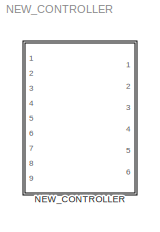
MODEL NEW_CONTROLLER
KIND model
CONFIG AbsTol = auto
CONFIG FixedStep = auto
CONFIG MaxStep = auto
CONFIG MinStep = auto
CONFIG RelTol = 1e-3
CONFIG Solver = ode45
CONFIG SolverMode = Auto
CONFIG StartTime = 0.0
CONFIG StopTime = 10.0
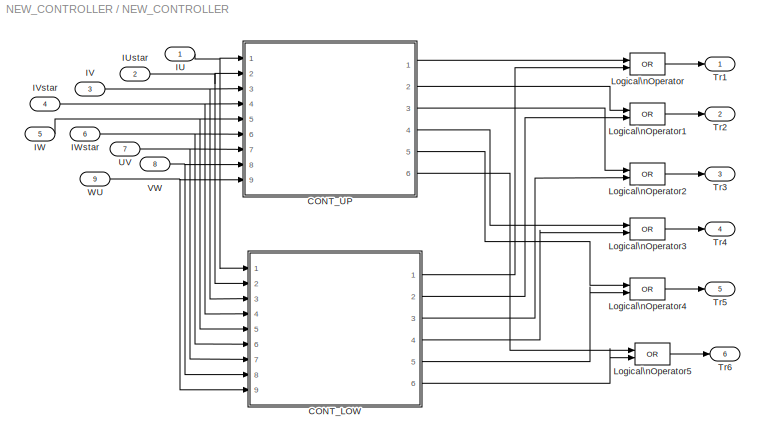
BLOCK [SubSystem] NEW_CONTROLLER
  Ports = [9, 6]
  TreatAsAtomicUnit = off
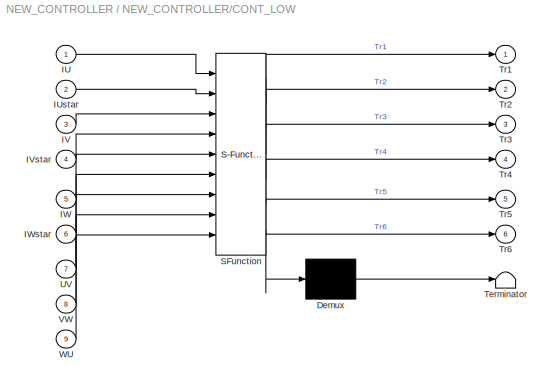
BLOCK [SubSystem] NEW_CONTROLLER/CONT_LOW
  MaskDescription = Stateflow diagram
  MaskDisplay = plot(sf('Private','sfblk','xIcon'),sf('Private','sfblk','yIcon'));text(0.5,0,sf('Private', 'sfblk', 'tIcon'),'HorizontalAl','Center','VerticalAl','Bottom');
  MaskIconFrame = off
  MaskIconOpaque = off
  MaskIconRotate = none
  MaskIconUnits = autoscale
  MaskSelfModifiable = on
  MaskType = Stateflow
  Ports = [9, 6]
  TreatAsAtomicUnit = on
BLOCK [Demux] NEW_CONTROLLER/CONT_LOW/ Demux 
  Outputs = 1
  Ports = [1, 1]
BLOCK [S-Function] NEW_CONTROLLER/CONT_LOW/ SFunction 
  FunctionName = sf_sfun
  PortCounts = [9 7]
  Ports = [9, 7]
  Tag = Stateflow S-Function NEW_CONTROLLER 1
BLOCK [Terminator] NEW_CONTROLLER/CONT_LOW/ Terminator 
BLOCK [Inport] NEW_CONTROLLER/CONT_LOW/IU
  PortDimensions = 1
BLOCK [Inport] NEW_CONTROLLER/CONT_LOW/IUstar
  Port = 2
  PortDimensions = 1
BLOCK [Inport] NEW_CONTROLLER/CONT_LOW/IV
  Port = 3
  PortDimensions = 1
BLOCK [Inport] NEW_CONTROLLER/CONT_LOW/IVstar
  Port = 4
  PortDimensions = 1
BLOCK [Inport] NEW_CONTROLLER/CONT_LOW/IW
  Port = 5
  PortDimensions = 1
BLOCK [Inport] NEW_CONTROLLER/CONT_LOW/IWstar
  Port = 6
  PortDimensions = 1
BLOCK [Outport] NEW_CONTROLLER/CONT_LOW/Tr1
BLOCK [Outport] NEW_CONTROLLER/CONT_LOW/Tr2
  Port = 2
BLOCK [Outport] NEW_CONTROLLER/CONT_LOW/Tr3
  Port = 3
BLOCK [Outport] NEW_CONTROLLER/CONT_LOW/Tr4
  Port = 4
BLOCK [Outport] NEW_CONTROLLER/CONT_LOW/Tr5
  Port = 5
BLOCK [Outport] NEW_CONTROLLER/CONT_LOW/Tr6
  Port = 6
BLOCK [Inport] NEW_CONTROLLER/CONT_LOW/UV
  Port = 7
  PortDimensions = 1
BLOCK [Inport] NEW_CONTROLLER/CONT_LOW/VW
  Port = 8
  PortDimensions = 1
BLOCK [Inport] NEW_CONTROLLER/CONT_LOW/WU
  Port = 9
  PortDimensions = 1
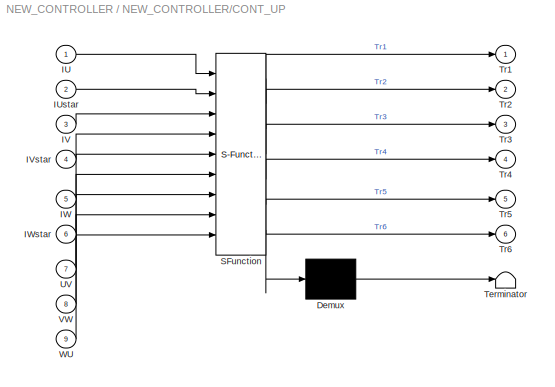
BLOCK [SubSystem] NEW_CONTROLLER/CONT_UP
  MaskDescription = Stateflow diagram
  MaskDisplay = plot(sf('Private','sfblk','xIcon'),sf('Private','sfblk','yIcon'));text(0.5,0,sf('Private', 'sfblk', 'tIcon'),'HorizontalAl','Center','VerticalAl','Bottom');
  MaskIconFrame = off
  MaskIconOpaque = off
  MaskIconRotate = none
  MaskIconUnits = autoscale
  MaskSelfModifiable = on
  MaskType = Stateflow
  Ports = [9, 6]
  TreatAsAtomicUnit = on
BLOCK [Demux] NEW_CONTROLLER/CONT_UP/ Demux 
  Outputs = 1
  Ports = [1, 1]
BLOCK [S-Function] NEW_CONTROLLER/CONT_UP/ SFunction 
  FunctionName = sf_sfun
  PortCounts = [9 7]
  Ports = [9, 7]
  Tag = Stateflow S-Function NEW_CONTROLLER 2
BLOCK [Terminator] NEW_CONTROLLER/CONT_UP/ Terminator 
BLOCK [Inport] NEW_CONTROLLER/CONT_UP/IU
  PortDimensions = 1
BLOCK [Inport] NEW_CONTROLLER/CONT_UP/IUstar
  Port = 2
  PortDimensions = 1
BLOCK [Inport] NEW_CONTROLLER/CONT_UP/IV
  Port = 3
  PortDimensions = 1
BLOCK [Inport] NEW_CONTROLLER/CONT_UP/IVstar
  Port = 4
  PortDimensions = 1
BLOCK [Inport] NEW_CONTROLLER/CONT_UP/IW
  Port = 5
  PortDimensions = 1
BLOCK [Inport] NEW_CONTROLLER/CONT_UP/IWstar
  Port = 6
  PortDimensions = 1
BLOCK [Outport] NEW_CONTROLLER/CONT_UP/Tr1
BLOCK [Outport] NEW_CONTROLLER/CONT_UP/Tr2
  Port = 2
BLOCK [Outport] NEW_CONTROLLER/CONT_UP/Tr3
  Port = 3
BLOCK [Outport] NEW_CONTROLLER/CONT_UP/Tr4
  Port = 4
BLOCK [Outport] NEW_CONTROLLER/CONT_UP/Tr5
  Port = 5
BLOCK [Outport] NEW_CONTROLLER/CONT_UP/Tr6
  Port = 6
BLOCK [Inport] NEW_CONTROLLER/CONT_UP/UV
  Port = 7
  PortDimensions = 1
BLOCK [Inport] NEW_CONTROLLER/CONT_UP/VW
  Port = 8
  PortDimensions = 1
BLOCK [Inport] NEW_CONTROLLER/CONT_UP/WU
  Port = 9
  PortDimensions = 1
BLOCK [Inport] NEW_CONTROLLER/IU
BLOCK [Inport] NEW_CONTROLLER/IUstar
  Port = 2
BLOCK [Inport] NEW_CONTROLLER/IV
  Port = 3
BLOCK [Inport] NEW_CONTROLLER/IVstar
  Port = 4
BLOCK [Inport] NEW_CONTROLLER/IW
  Port = 5
BLOCK [Inport] NEW_CONTROLLER/IWstar
  Port = 6
BLOCK [Logic] NEW_CONTROLLER/Logical\nOperator
  AllPortsSameDT = off
  Operator = OR
  Ports = [2, 1]
BLOCK [Logic] NEW_CONTROLLER/Logical\nOperator1
  AllPortsSameDT = off
  Operator = OR
  Ports = [2, 1]
BLOCK [Logic] NEW_CONTROLLER/Logical\nOperator2
  AllPortsSameDT = off
  Operator = OR
  Ports = [2, 1]
BLOCK [Logic] NEW_CONTROLLER/Logical\nOperator3
  AllPortsSameDT = off
  Operator = OR
  Ports = [2, 1]
BLOCK [Logic] NEW_CONTROLLER/Logical\nOperator4
  AllPortsSameDT = off
  Operator = OR
  Ports = [2, 1]
BLOCK [Logic] NEW_CONTROLLER/Logical\nOperator5
  AllPortsSameDT = off
  Operator = OR
  Ports = [2, 1]
BLOCK [Outport] NEW_CONTROLLER/Tr1
BLOCK [Outport] NEW_CONTROLLER/Tr2
  Port = 2
BLOCK [Outport] NEW_CONTROLLER/Tr3
  Port = 3
BLOCK [Outport] NEW_CONTROLLER/Tr4
  Port = 4
BLOCK [Outport] NEW_CONTROLLER/Tr5
  Port = 5
BLOCK [Outport] NEW_CONTROLLER/Tr6
  Port = 6
BLOCK [Inport] NEW_CONTROLLER/UV
  Port = 7
BLOCK [Inport] NEW_CONTROLLER/VW
  Port = 8
BLOCK [Inport] NEW_CONTROLLER/WU
  Port = 9
LINE NEW_CONTROLLER/CONT_LOW/ Demux :1 -> NEW_CONTROLLER/CONT_LOW/ Terminator :1
LINE NEW_CONTROLLER/CONT_LOW/ SFunction :1 -> NEW_CONTROLLER/CONT_LOW/ Demux :1
LINE NEW_CONTROLLER/CONT_LOW/ SFunction :2 -> NEW_CONTROLLER/CONT_LOW/Tr1:1
LINE NEW_CONTROLLER/CONT_LOW/ SFunction :3 -> NEW_CONTROLLER/CONT_LOW/Tr2:1
LINE NEW_CONTROLLER/CONT_LOW/ SFunction :4 -> NEW_CONTROLLER/CONT_LOW/Tr3:1
LINE NEW_CONTROLLER/CONT_LOW/ SFunction :5 -> NEW_CONTROLLER/CONT_LOW/Tr4:1
LINE NEW_CONTROLLER/CONT_LOW/ SFunction :6 -> NEW_CONTROLLER/CONT_LOW/Tr5:1
LINE NEW_CONTROLLER/CONT_LOW/ SFunction :7 -> NEW_CONTROLLER/CONT_LOW/Tr6:1
LINE NEW_CONTROLLER/CONT_LOW/IU:1 -> NEW_CONTROLLER/CONT_LOW/ SFunction :1
LINE NEW_CONTROLLER/CONT_LOW/IUstar:1 -> NEW_CONTROLLER/CONT_LOW/ SFunction :2
LINE NEW_CONTROLLER/CONT_LOW/IV:1 -> NEW_CONTROLLER/CONT_LOW/ SFunction :3
LINE NEW_CONTROLLER/CONT_LOW/IVstar:1 -> NEW_CONTROLLER/CONT_LOW/ SFunction :4
LINE NEW_CONTROLLER/CONT_LOW/IW:1 -> NEW_CONTROLLER/CONT_LOW/ SFunction :5
LINE NEW_CONTROLLER/CONT_LOW/IWstar:1 -> NEW_CONTROLLER/CONT_LOW/ SFunction :6
LINE NEW_CONTROLLER/CONT_LOW/UV:1 -> NEW_CONTROLLER/CONT_LOW/ SFunction :7
LINE NEW_CONTROLLER/CONT_LOW/VW:1 -> NEW_CONTROLLER/CONT_LOW/ SFunction :8
LINE NEW_CONTROLLER/CONT_LOW/WU:1 -> NEW_CONTROLLER/CONT_LOW/ SFunction :9
LINE NEW_CONTROLLER/CONT_LOW:1 -> NEW_CONTROLLER/Logical\nOperator:2
LINE NEW_CONTROLLER/CONT_LOW:2 -> NEW_CONTROLLER/Logical\nOperator1:2
LINE NEW_CONTROLLER/CONT_LOW:3 -> NEW_CONTROLLER/Logical\nOperator2:2
LINE NEW_CONTROLLER/CONT_LOW:4 -> NEW_CONTROLLER/Logical\nOperator3:2
LINE NEW_CONTROLLER/CONT_LOW:5 -> NEW_CONTROLLER/Logical\nOperator4:2
LINE NEW_CONTROLLER/CONT_LOW:6 -> NEW_CONTROLLER/Logical\nOperator5:2
LINE NEW_CONTROLLER/CONT_UP/ Demux :1 -> NEW_CONTROLLER/CONT_UP/ Terminator :1
LINE NEW_CONTROLLER/CONT_UP/ SFunction :1 -> NEW_CONTROLLER/CONT_UP/ Demux :1
LINE NEW_CONTROLLER/CONT_UP/ SFunction :2 -> NEW_CONTROLLER/CONT_UP/Tr1:1
LINE NEW_CONTROLLER/CONT_UP/ SFunction :3 -> NEW_CONTROLLER/CONT_UP/Tr2:1
LINE NEW_CONTROLLER/CONT_UP/ SFunction :4 -> NEW_CONTROLLER/CONT_UP/Tr3:1
LINE NEW_CONTROLLER/CONT_UP/ SFunction :5 -> NEW_CONTROLLER/CONT_UP/Tr4:1
LINE NEW_CONTROLLER/CONT_UP/ SFunction :6 -> NEW_CONTROLLER/CONT_UP/Tr5:1
LINE NEW_CONTROLLER/CONT_UP/ SFunction :7 -> NEW_CONTROLLER/CONT_UP/Tr6:1
LINE NEW_CONTROLLER/CONT_UP/IU:1 -> NEW_CONTROLLER/CONT_UP/ SFunction :1
LINE NEW_CONTROLLER/CONT_UP/IUstar:1 -> NEW_CONTROLLER/CONT_UP/ SFunction :2
LINE NEW_CONTROLLER/CONT_UP/IV:1 -> NEW_CONTROLLER/CONT_UP/ SFunction :3
LINE NEW_CONTROLLER/CONT_UP/IVstar:1 -> NEW_CONTROLLER/CONT_UP/ SFunction :4
LINE NEW_CONTROLLER/CONT_UP/IW:1 -> NEW_CONTROLLER/CONT_UP/ SFunction :5
LINE NEW_CONTROLLER/CONT_UP/IWstar:1 -> NEW_CONTROLLER/CONT_UP/ SFunction :6
LINE NEW_CONTROLLER/CONT_UP/UV:1 -> NEW_CONTROLLER/CONT_UP/ SFunction :7
LINE NEW_CONTROLLER/CONT_UP/VW:1 -> NEW_CONTROLLER/CONT_UP/ SFunction :8
LINE NEW_CONTROLLER/CONT_UP/WU:1 -> NEW_CONTROLLER/CONT_UP/ SFunction :9
LINE NEW_CONTROLLER/CONT_UP:1 -> NEW_CONTROLLER/Logical\nOperator:1
LINE NEW_CONTROLLER/CONT_UP:2 -> NEW_CONTROLLER/Logical\nOperator1:1
LINE NEW_CONTROLLER/CONT_UP:3 -> NEW_CONTROLLER/Logical\nOperator2:1
LINE NEW_CONTROLLER/CONT_UP:4 -> NEW_CONTROLLER/Logical\nOperator3:1
LINE NEW_CONTROLLER/CONT_UP:5 -> NEW_CONTROLLER/Logical\nOperator4:1
LINE NEW_CONTROLLER/CONT_UP:6 -> NEW_CONTROLLER/Logical\nOperator5:1
NET NEW_CONTROLLER/IU:1 -> NEW_CONTROLLER/CONT_LOW:1, NEW_CONTROLLER/CONT_UP:1
NET NEW_CONTROLLER/IUstar:1 -> NEW_CONTROLLER/CONT_LOW:2, NEW_CONTROLLER/CONT_UP:2
NET NEW_CONTROLLER/IV:1 -> NEW_CONTROLLER/CONT_LOW:3, NEW_CONTROLLER/CONT_UP:3
NET NEW_CONTROLLER/IVstar:1 -> NEW_CONTROLLER/CONT_LOW:4, NEW_CONTROLLER/CONT_UP:4
NET NEW_CONTROLLER/IW:1 -> NEW_CONTROLLER/CONT_LOW:5, NEW_CONTROLLER/CONT_UP:5
NET NEW_CONTROLLER/IWstar:1 -> NEW_CONTROLLER/CONT_LOW:6, NEW_CONTROLLER/CONT_UP:6
LINE NEW_CONTROLLER/Logical\nOperator1:1 -> NEW_CONTROLLER/Tr2:1
LINE NEW_CONTROLLER/Logical\nOperator2:1 -> NEW_CONTROLLER/Tr3:1
LINE NEW_CONTROLLER/Logical\nOperator3:1 -> NEW_CONTROLLER/Tr4:1
LINE NEW_CONTROLLER/Logical\nOperator4:1 -> NEW_CONTROLLER/Tr5:1
LINE NEW_CONTROLLER/Logical\nOperator5:1 -> NEW_CONTROLLER/Tr6:1
LINE NEW_CONTROLLER/Logical\nOperator:1 -> NEW_CONTROLLER/Tr1:1
NET NEW_CONTROLLER/UV:1 -> NEW_CONTROLLER/CONT_LOW:7, NEW_CONTROLLER/CONT_UP:7
NET NEW_CONTROLLER/VW:1 -> NEW_CONTROLLER/CONT_LOW:8, NEW_CONTROLLER/CONT_UP:8
NET NEW_CONTROLLER/WU:1 -> NEW_CONTROLLER/CONT_LOW:9, NEW_CONTROLLER/CONT_UP:9
note: NET lines group one-source signal fan-out (src -> all destinations, sorted); 1:1 wires keep LINE
CHART NEW_CONTROLLER/CONT_LOW states=18 transitions=25
  STATE_LABEL 'A/'
  STATE_LABEL 'A1/\\nduring: Tr1=0;Tr3=0;Tr4=0;\\nTr2=0;Tr5=0;Tr6=0;'
  STATE_LABEL 'A2/\\nduring: Tr1=0; Tr3=0; Tr4=0; Tr2=0; Tr5=0;\\nTr6=1;'
  STATE_LABEL 'B/'
  STATE_LABEL 'B1/\\nduring: Tr3=0;Tr5=0;Tr4=0;Tr2=0;\\nTr1=0; Tr6=0;'
  STATE_LABEL 'B2/\\nduring:Tr3=0;Tr5=0;Tr4=0;Tr2=0;\\nTr1=0; Tr6=1;'
  STATE_LABEL 'C/'
  STATE_LABEL 'C1/\\nduring: Tr3=0;Tr5=0;Tr4=0;Tr2=0;\\nTr1=0; Tr6=0;'
  STATE_LABEL 'C2/\\nduring: Tr3=0;Tr5=0; Tr4=0; Tr6=0;\\nTr1=0; Tr2=1;'
  STATE_LABEL 'D/'
  STATE_LABEL 'D1/\\nduring: Tr3=0;Tr5=0;Tr4=0;Tr2=0;\\nTr1=0; Tr6=0;'
  STATE_LABEL 'D2/\\nduring: Tr1=0; Tr5=0;Tr4=0; Tr6=0;\\nTr3=0; Tr2=1;'
  STATE_LABEL 'E/'
  STATE_LABEL 'E1/\\nduring: Tr3=0;Tr5=0;Tr4=0;Tr2=0;\\nTr1=0; Tr6=0;'
  STATE_LABEL 'E2/\\nduring: Tr1=0; Tr5=0; Tr6=0; Tr2=0;\\nTr3=0; Tr4=1;'
  STATE_LABEL 'F/'
  STATE_LABEL 'F1/\\nduring: Tr3=0;Tr5=0;Tr4=0;Tr2=0;\\nTr1=0; Tr6=0;'
  STATE_LABEL 'F2/\\nduring: Tr1=0; Tr3=0; Tr6=0; Tr2=0;\\nTr5=0; Tr4=1;'
CHART NEW_CONTROLLER/CONT_UP states=18 transitions=25
  STATE_LABEL 'A/'
  STATE_LABEL 'A11/\\nduring:Tr1=0;Tr1=0;Tr2=0;Tr3=0;Tr4=0;Tr5=0;\\nTr6=0;'
  STATE_LABEL 'A2/\\nduring: Tr1=0; Tr3=0; Tr4=0; Tr2=0; Tr5=1;\\nTr6=0;'
  STATE_LABEL 'B/'
  STATE_LABEL 'B1/\\nduring: Tr3=0;Tr5=0;Tr4=0;Tr2=0;\\nTr1=0; Tr6=0;'
  STATE_LABEL 'B2/\\nduring:Tr3=0;Tr5=0;Tr4=0;Tr2=0;\\nTr1=1; Tr6=0;'
  STATE_LABEL 'C/'
  STATE_LABEL 'C1/\\nduring: Tr3=0;Tr5=0;Tr4=0;Tr2=0;\\nTr1=0; Tr6=0;'
  STATE_LABEL 'C2/\\nduring: Tr3=0;Tr5=0; Tr4=0; Tr6=0;\\nTr1=1; Tr2=0;'
  STATE_LABEL 'D/'
  STATE_LABEL 'D1/\\nduring: Tr3=0;Tr5=0;Tr4=0;Tr2=0;\\nTr1=0; Tr6=0;'
  STATE_LABEL 'D2/\\nduring: Tr1=0; Tr5=0;Tr4=0; Tr6=0;\\nTr3=1; Tr2=0;'
  STATE_LABEL 'E/'
  STATE_LABEL 'E1/\\nduring: Tr3=0;Tr5=0;Tr4=0;Tr2=0;\\nTr1=0; Tr6=0;'
  STATE_LABEL 'E2/\\nduring: Tr1=0; Tr5=0; Tr6=0; Tr2=0;\\nTr3=1; Tr4=0;'
  STATE_LABEL 'F/'
  STATE_LABEL 'F1/\\nduring: Tr3=0;Tr5=0;Tr4=0;Tr2=0;\\nTr1=0; Tr6=0;'
  STATE_LABEL 'F2/\\nduring: Tr1=0; Tr3=0; Tr6=0; Tr2=0;\\nTr5=1; Tr4=0;'
